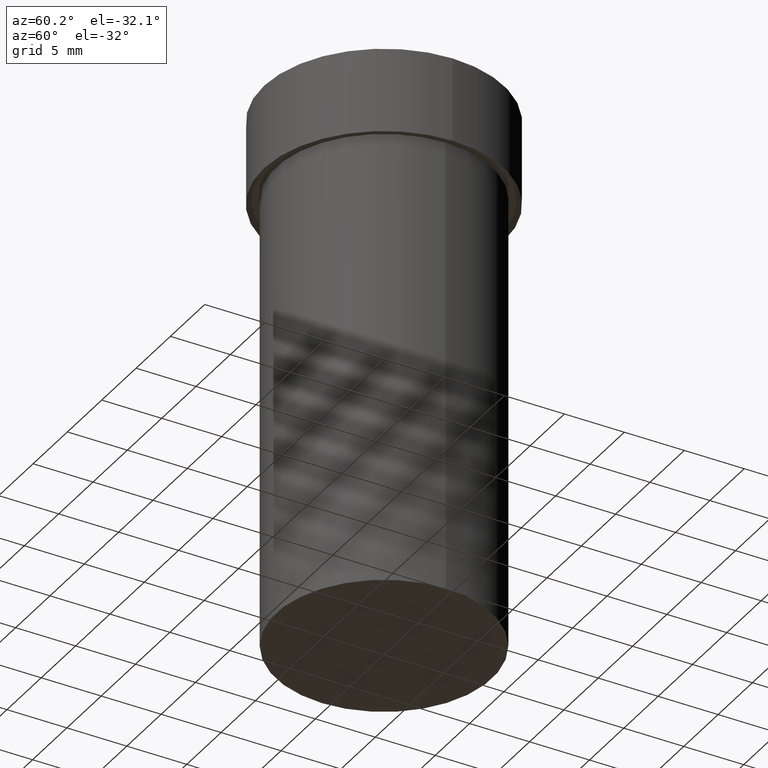
[diagram: clean part render]
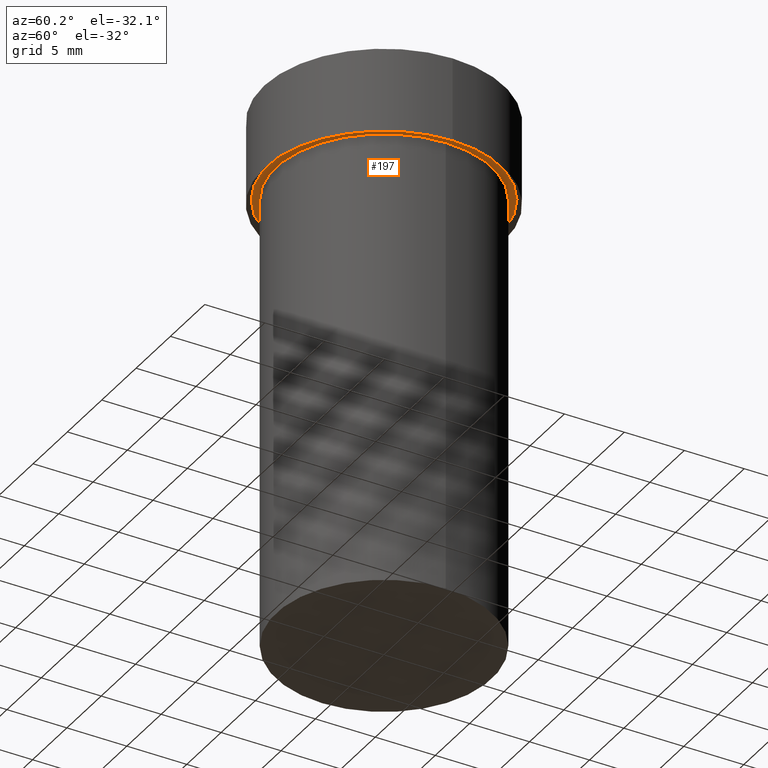
[diagram: same view with one face highlighted and labeled with its STEP entity id]
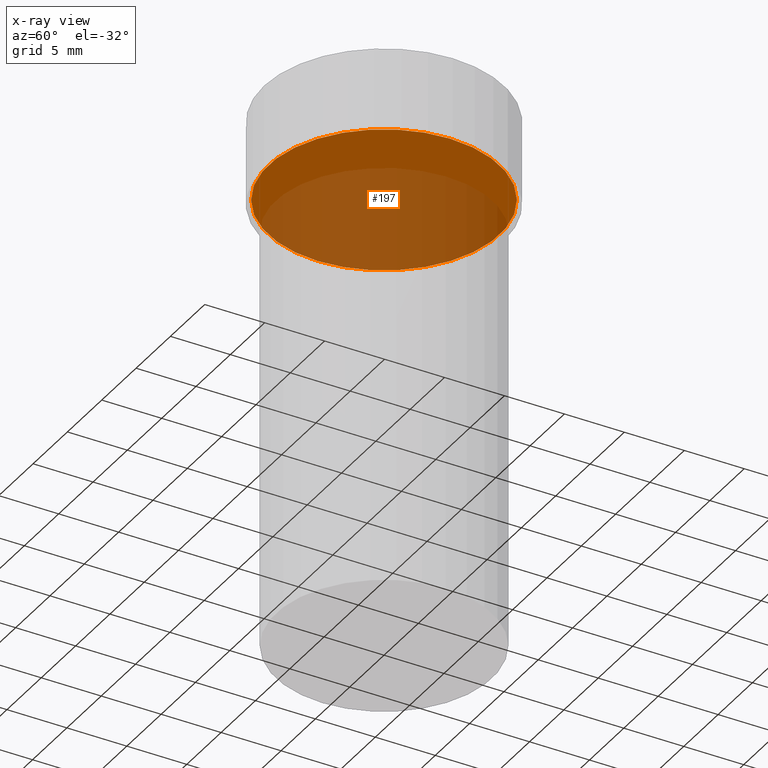
[diagram: x-ray of the same camera — body ghosted, the highlighted face saturated]
A machine part, auxiliary view. The second image highlights one B-rep face of the part: STEP entity #197.
The next image is the same camera in x-ray: the body ghosted, the highlighted face saturated — about 64% of this face is hidden behind the body in this view.
In plain terms, the highlighted planar face has unit normal (0, -0, -1).
Its self-contained STEP definition (entity closure, byte-faithful):
#12 = DIRECTION ( 'NONE',  ( -1.000000000000000000, 6.982962677686265922E-15, -4.876176775795935793E-29 ) ) ;
#32 = PLANE ( 'NONE',  #366 ) ;
#34 = ORIENTED_EDGE ( 'NONE', *, *, #106, .T. ) ;
#36 = DIRECTION ( 'NONE',  ( 2.445468806185136597E-29, -3.491481338843145583E-15, -1.000000000000000000 ) ) ;
#51 = VERTEX_POINT ( 'NONE', #59 ) ;
#59 = CARTESIAN_POINT ( 'NONE',  ( -0.3787000000000000366, 2.644447966039788269E-15, -2.149005929463861069E-16 ) ) ;
#78 = ORIENTED_EDGE ( 'NONE', *, *, #152, .T. ) ;
#79 = CARTESIAN_POINT ( 'NONE',  ( 0.3787000000000000366, -2.675710436780689970E-15, -2.149005929463490551E-16 ) ) ;
#83 = DIRECTION ( 'NONE',  ( -1.000000000000000000, 6.982962677686266711E-15, -4.877404199330184597E-29 ) ) ;
#106 = EDGE_CURVE ( 'NONE', #51, #436, #264, .T. ) ;
#152 = EDGE_CURVE ( 'NONE', #436, #51, #154, .T. ) ;
#154 = CIRCLE ( 'NONE', #424, 0.3787000000000000366 ) ;
#174 = DIRECTION ( 'NONE',  ( 2.438088387897960049E-29, -3.491481338843145188E-15, -1.000000000000000000 ) ) ;
#191 = CARTESIAN_POINT ( 'NONE',  ( 5.255326964810316247E-45, -7.503214099785695689E-31, -2.149005929463676427E-16 ) ) ;
#197 = ADVANCED_FACE ( 'NONE', ( #357 ), #32, .T. ) ;
#258 = CARTESIAN_POINT ( 'NONE',  ( 2.644447966039789453E-15, 0.3787000000000000366, -1.429674279493083145E-15 ) ) ;
#260 = EDGE_LOOP ( 'NONE', ( #34, #78 ) ) ;
#264 = CIRCLE ( 'NONE', #365, 0.3787000000000000366 ) ;
#289 = CARTESIAN_POINT ( 'NONE',  ( 5.255326964810316247E-45, -7.503214099785695689E-31, -2.149005929463676427E-16 ) ) ;
#357 = FACE_OUTER_BOUND ( 'NONE', #260, .T. ) ;
#365 = AXIS2_PLACEMENT_3D ( 'NONE', #191, #383, #83 ) ;
#366 = AXIS2_PLACEMENT_3D ( 'NONE', #258, #174, #12 ) ;
#383 = DIRECTION ( 'NONE',  ( 2.445468806185136597E-29, -3.491481338843145583E-15, -1.000000000000000000 ) ) ;
#423 = DIRECTION ( 'NONE',  ( -1.000000000000000000, 6.982962677686266711E-15, -4.877404199330184597E-29 ) ) ;
#424 = AXIS2_PLACEMENT_3D ( 'NONE', #289, #36, #423 ) ;
#436 = VERTEX_POINT ( 'NONE', #79 ) ;